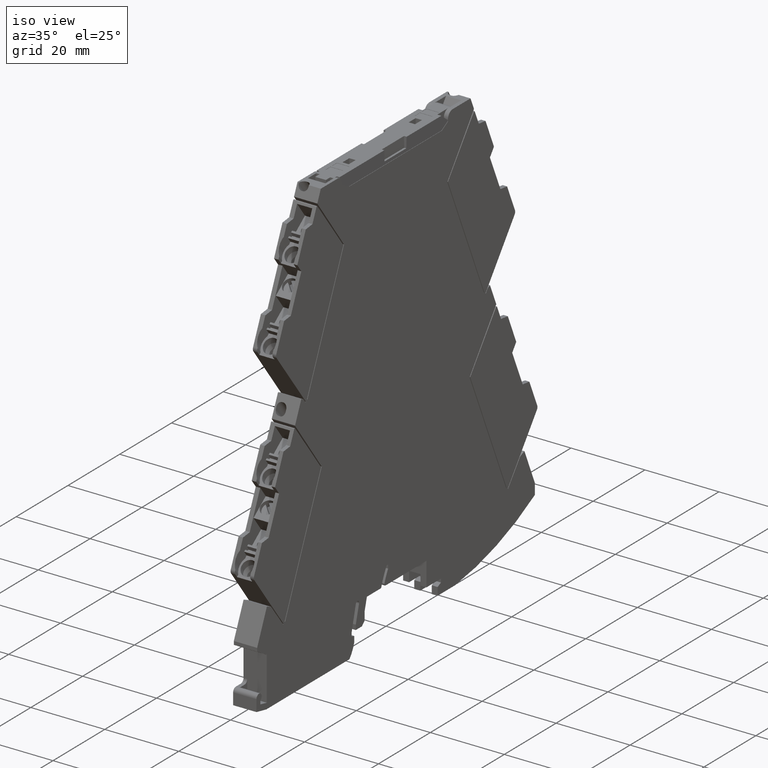
[diagram: clean part render]
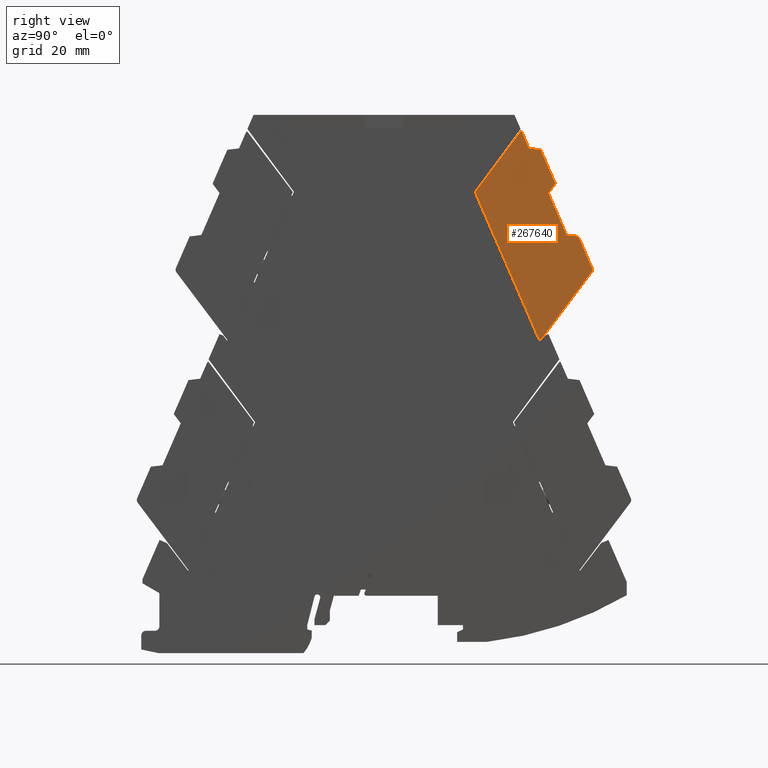
[diagram: tour spotlight — one face highlighted and labeled with its STEP entity id]
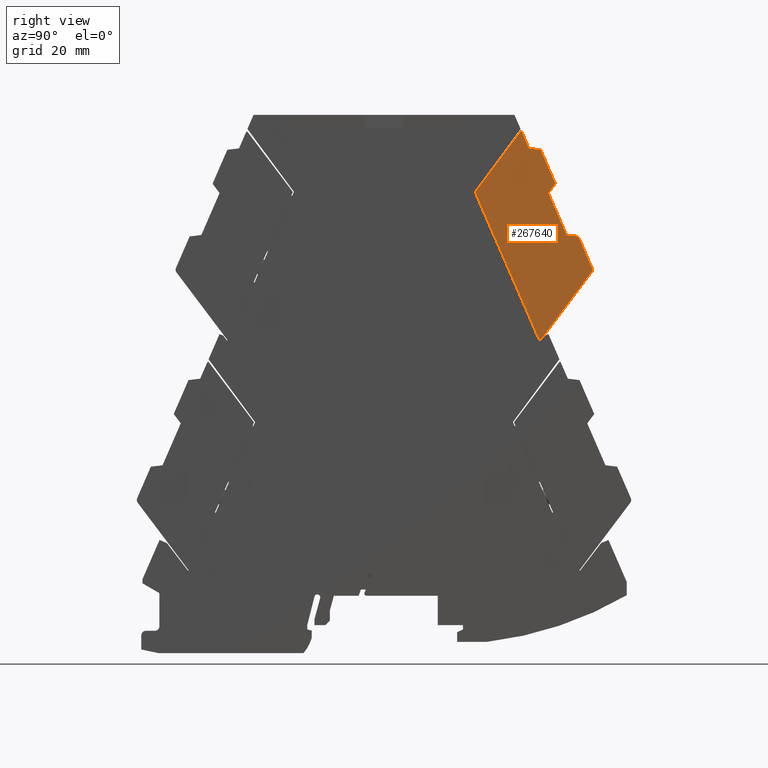
[diagram: tour spotlight — one face highlighted and labeled with its STEP entity id]
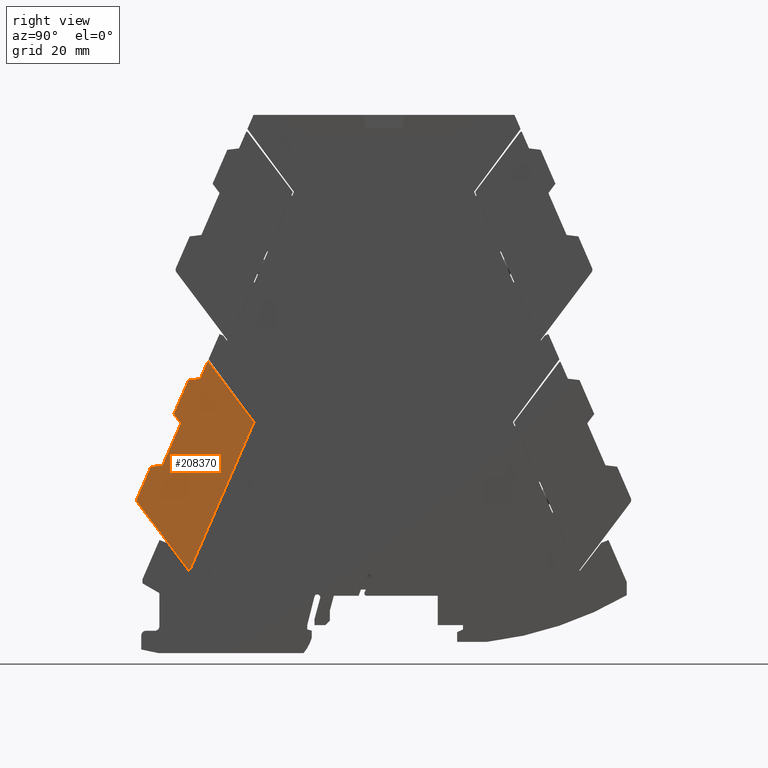
[diagram: tour spotlight — one face highlighted and labeled with its STEP entity id]
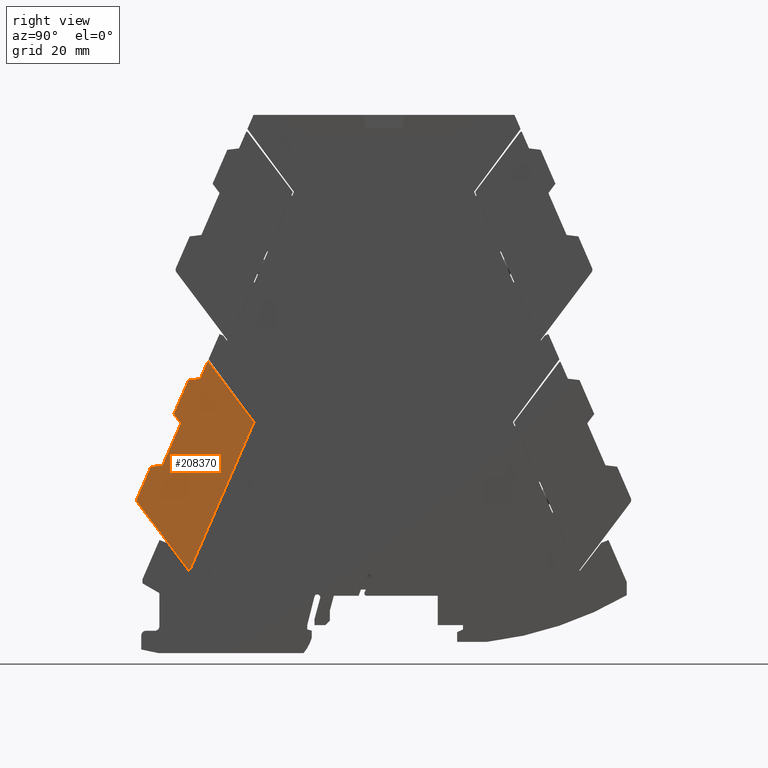
[diagram: tour spotlight — one face highlighted and labeled with its STEP entity id]
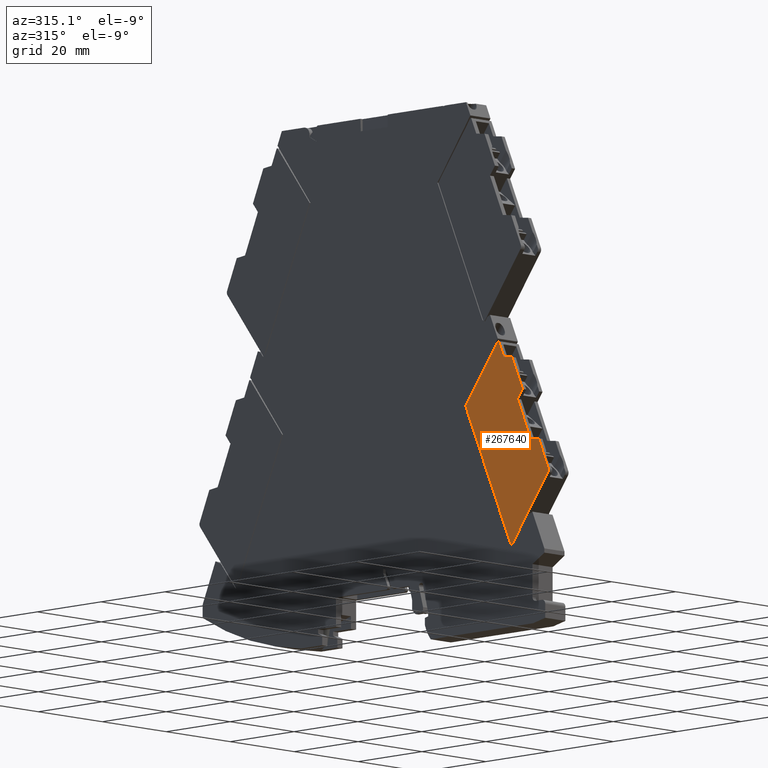
[diagram: tour spotlight — one face highlighted and labeled with its STEP entity id]
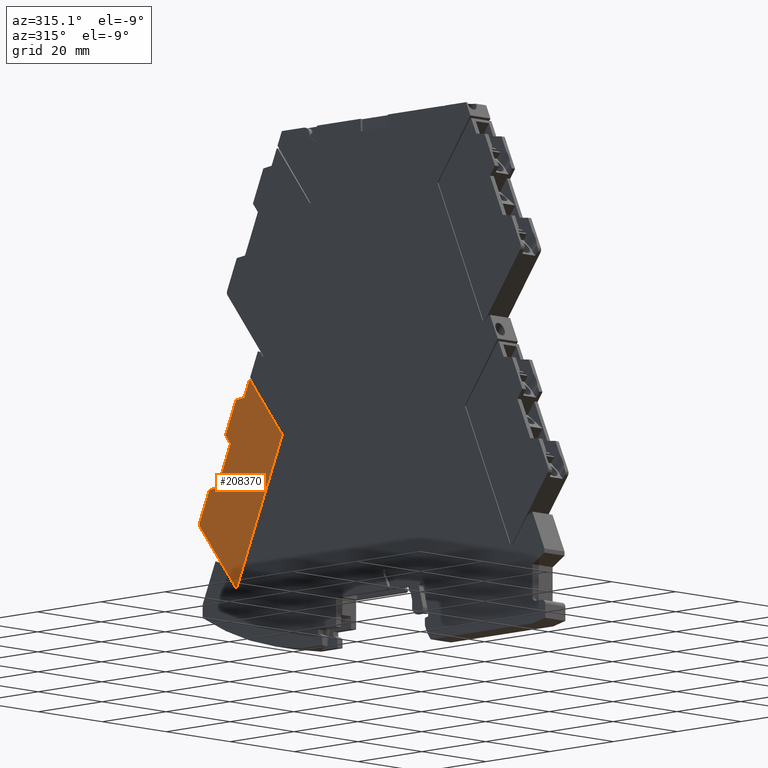
[diagram: tour spotlight — one face highlighted and labeled with its STEP entity id]
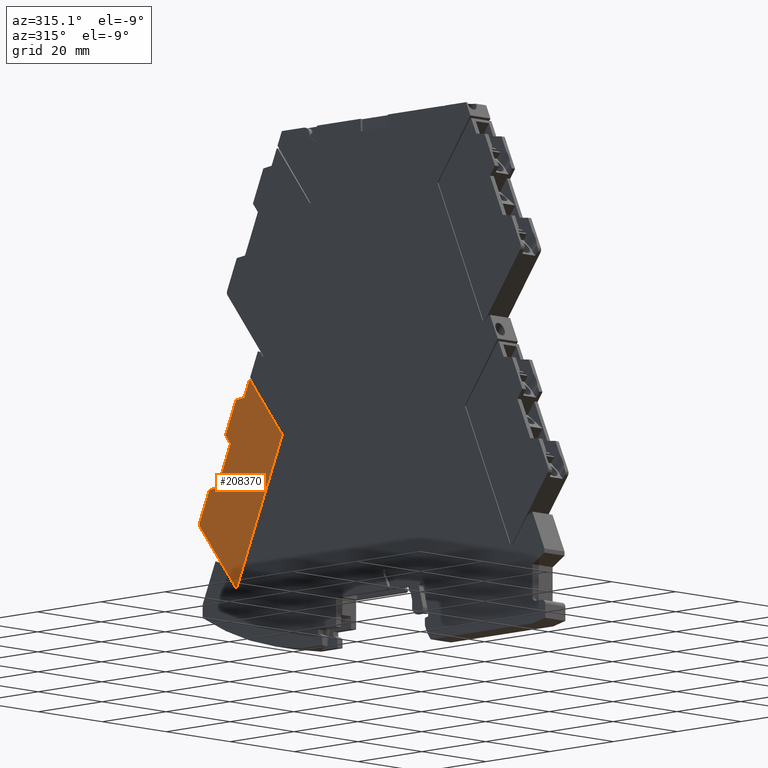
[diagram: tour spotlight — one face highlighted and labeled with its STEP entity id]
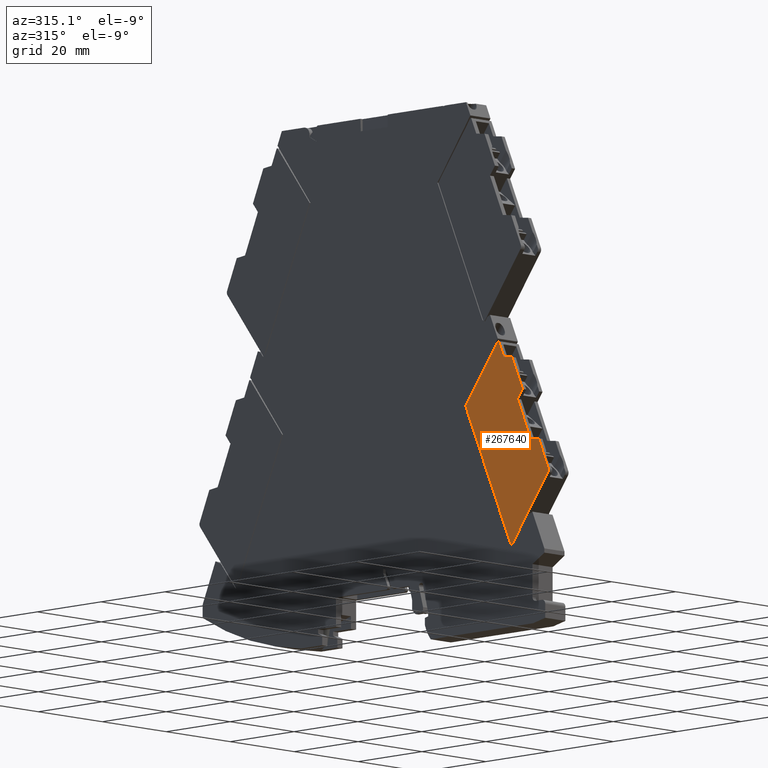
[diagram: tour spotlight — one face highlighted and labeled with its STEP entity id]
A machine part: a face-by-face anatomy tour. The part has 1234 B-rep faces; the first image is the clean iso view, then the 8 largest visible faces are spotlighted one at a time (largest first), each with its STEP entity span.

Face 1 — right view, entity #267640. In plain terms, the highlighted planar face has unit normal (1, -0, 0).
Definition (entity closure, byte-faithful):
#208470=CARTESIAN_POINT('',(-127.834970243558,23.5417332228139,
-9.55000000252271));
#208480=VERTEX_POINT('',#208470);
#208510=CARTESIAN_POINT('',(-2.8421709430404E-14,22.4261353561558,
-9.55000001550444));
#208520=DIRECTION('',(-0.999961923133656,0.00872652753623981,
1.01546791808627E-10));
#208530=VECTOR('',#208520,1.);
#208540=LINE('',#208510,#208530);
#208550=CARTESIAN_POINT('',(-144.491342192195,23.6870910457856,
-9.55000000083125));
#208560=VERTEX_POINT('',#208550);
#208570=EDGE_CURVE('',#208480,#208560,#208540,.T.);
#208800=CARTESIAN_POINT('',(-142.601348859071,-7.12310506249165,
-9.55000000094918));
#208810=VERTEX_POINT('',#208800);
#208970=CARTESIAN_POINT('',(-143.476039707181,-7.62296120132255,
-9.55000000085919));
#208980=VERTEX_POINT('',#208970);
#209010=CARTESIAN_POINT('',(-143.467313179645,-6.6229992781889,
-9.55000000086248));
#209020=DIRECTION('',(1.00774222510954E-10,1.12576479819879E-12,1.));
#209030=DIRECTION('',(0.999961923133654,-0.00872652753639959,
-1.00760561326841E-10));
#209040=AXIS2_PLACEMENT_3D('',#209010,#209020,#209030);
#209050=CIRCLE('',#209040,1.);
#209060=EDGE_CURVE('',#208980,#208810,#209050,.T.);
#209800=CARTESIAN_POINT('',(-162.213817258033,-7.45943924342349,
-9.54999999895636));
#209810=VERTEX_POINT('',#209800);
#209840=CARTESIAN_POINT('',(-2.8421709430404E-14,-8.87505648875294,
-9.55000001542928));
#209850=DIRECTION('',(0.999961923133656,-0.00872652753623987,
-1.01546791808627E-10));
#209860=VECTOR('',#209850,1.);
#209870=LINE('',#209840,#209860);
#209880=EDGE_CURVE('',#209810,#208980,#209870,.T.);
#210020=CARTESIAN_POINT('',(-127.66352268495,23.2417196813266,
-9.5500000025394));
#210030=VERTEX_POINT('',#210020);
#210060=CARTESIAN_POINT('',(-127.836715549065,23.3417408381872,
-9.55000000252205));
#210070=DIRECTION('',(-1.00774222510954E-10,-1.12576479819879E-12,-1.));
#210080=DIRECTION('',(0.999961923133654,-0.00872652753639959,
-1.00760561326841E-10));
#210090=AXIS2_PLACEMENT_3D('',#210060,#210070,#210080);
#210100=CIRCLE('',#210090,0.2);
#210110=EDGE_CURVE('',#208480,#210030,#210100,.T.);
#216180=CARTESIAN_POINT('',(-138.794183140722,-0.530760447698506,
-9.55000000135176));
#216190=VERTEX_POINT('',#216180);
#216220=CARTESIAN_POINT('',(-139.096507752099,-1.77635683940025E-15,
-9.55000000132233));
#216230=DIRECTION('',(-0.494944961437488,0.86892432647938,
4.81859274703567E-11));
#216240=VECTOR('',#216230,1.);
#216250=LINE('',#216220,#216240);
#216260=CARTESIAN_POINT('',(-140.084358501353,1.73426868406695,
-9.55000000122615));
#216270=VERTEX_POINT('',#216260);
#216280=EDGE_CURVE('',#216190,#216270,#216250,.T.);
#216450=CARTESIAN_POINT('',(-138.487662001609,-1.77635683940025E-15,
-9.55000000138417));
#216460=DIRECTION('',(-0.500105784302748,-0.865964320573852,
5.28759258600076E-11));
#216470=VECTOR('',#216460,1.);
#216480=LINE('',#216450,#216470);
#216490=CARTESIAN_POINT('',(-128.335752732167,17.5786633327923,
-9.55000000245753));
#216500=VERTEX_POINT('',#216490);
#216510=CARTESIAN_POINT('',(-132.434530595542,10.4813741210917,
-9.55000000202417));
#216520=VERTEX_POINT('',#216510);
#216530=EDGE_CURVE('',#216500,#216520,#216480,.T.);
#217030=CARTESIAN_POINT('',(-118.322831491231,-1.77635683940025E-15,
-9.55000000343234));
#217040=DIRECTION('',(-0.494944961437488,0.86892432647938,
4.81859274703567E-11));
#217050=VECTOR('',#217040,1.);
#217060=LINE('',#217030,#217050);
#217070=CARTESIAN_POINT('',(-129.625928092798,19.8436924645577,
-9.55000000233192));
#217080=VERTEX_POINT('',#217070);
#217090=EDGE_CURVE('',#216500,#217080,#217060,.T.);
#217330=CARTESIAN_POINT('',(-2.8421709430404E-14,9.32563653623511,
-9.55000001547298));
#217340=DIRECTION('',(0.999961923133656,-0.00872652753623987,
-1.01546791808627E-10));
#217350=VECTOR('',#217340,1.);
#217360=LINE('',#217330,#217350);
#217370=CARTESIAN_POINT('',(-135.019760828803,10.5039350629597,
-9.55000000176163));
#217380=VERTEX_POINT('',#217370);
#217390=EDGE_CURVE('',#217380,#216520,#217360,.T.);
#217900=CARTESIAN_POINT('',(-141.08592147552,-1.77635683940025E-15,
-9.55000000112026));
#217910=DIRECTION('',(-0.500105784302748,-0.865964320573852,
5.28759258600076E-11));
#217920=VECTOR('',#217910,1.);
#217930=LINE('',#217900,#217920);
#217940=EDGE_CURVE('',#217380,#216270,#217930,.T.);
#230310=CARTESIAN_POINT('',(-141.08592147552,-1.77635683940025E-15,
-9.55000000112026));
#230320=DIRECTION('',(-0.500105784302748,-0.865964320573852,
5.28759258600076E-11));
#230330=VECTOR('',#230320,1.);
#230340=LINE('',#230310,#230330);
#230350=EDGE_CURVE('',#210030,#217080,#230340,.T.);
#239780=CARTESIAN_POINT('',(-158.170948803993,-1.77635683940025E-15,
-9.54999999938491));
#239790=DIRECTION('',(0.500105784302748,0.865964320573852,
-5.28758981044319E-11));
#239800=VECTOR('',#239790,1.);
#239810=LINE('',#239780,#239800);
#239820=CARTESIAN_POINT('',(-162.209750519817,-6.99343677588575,
-9.54999999895789));
#239830=VERTEX_POINT('',#239820);
#239840=EDGE_CURVE('',#239830,#208560,#239810,.T.);
#254980=CARTESIAN_POINT('',(-162.148719777324,-1.77635683940025E-15,
-9.54999999898088));
#254990=DIRECTION('',(0.00872652754141354,0.999961923133611,
-3.28746491834453E-12));
#255000=VECTOR('',#254990,1.);
#255010=LINE('',#254980,#255000);
#255020=EDGE_CURVE('',#209810,#239830,#255010,.T.);
#267390=CARTESIAN_POINT('',(-146.763942497471,10.8898733385578,
-9.55000000056969));
#267400=DIRECTION('',(1.01571614201302E-10,2.40118788303072E-12,1.));
#267410=DIRECTION('',(-1.08412129273731E-9,1.,-2.40118777291478E-12));
#267420=AXIS2_PLACEMENT_3D('',#267390,#267400,#267410);
#267430=PLANE('',#267420);
#267440=ORIENTED_EDGE('',*,*,#210110,.F.);
#267450=ORIENTED_EDGE('',*,*,#230350,.F.);
#267460=ORIENTED_EDGE('',*,*,#217090,.T.);
#267470=ORIENTED_EDGE('',*,*,#216530,.F.);
#267480=ORIENTED_EDGE('',*,*,#217390,.T.);
#267490=ORIENTED_EDGE('',*,*,#217940,.F.);
#267500=ORIENTED_EDGE('',*,*,#216280,.T.);
#267510=CARTESIAN_POINT('',(-138.487662001609,-1.77635683940025E-15,
-9.55000000138417));
#267520=DIRECTION('',(-0.500105784302748,-0.865964320573852,
5.28759258600076E-11));
#267530=VECTOR('',#267520,1.);
#267540=LINE('',#267510,#267530);
#267550=EDGE_CURVE('',#216190,#208810,#267540,.T.);
#267560=ORIENTED_EDGE('',*,*,#267550,.F.);
#267570=ORIENTED_EDGE('',*,*,#209060,.T.);
#267580=ORIENTED_EDGE('',*,*,#209880,.T.);
#267590=ORIENTED_EDGE('',*,*,#255020,.F.);
#267600=ORIENTED_EDGE('',*,*,#239840,.F.);
#267610=ORIENTED_EDGE('',*,*,#208570,.T.);
#267620=EDGE_LOOP('',(#267610,#267600,#267590,#267580,#267570,#267560,
#267500,#267490,#267480,#267470,#267460,#267450,#267440));
#267630=FACE_OUTER_BOUND('',#267620,.T.);
#267640=ADVANCED_FACE('',(#267630),#267430,.T.);

Face 2 — right view, entity #267640. In plain terms, the highlighted planar face has unit normal (1, -0, 0).
Definition (entity closure, byte-faithful):
#208470=CARTESIAN_POINT('',(-127.834970243558,23.5417332228139,
-9.55000000252271));
#208480=VERTEX_POINT('',#208470);
#208510=CARTESIAN_POINT('',(-2.8421709430404E-14,22.4261353561558,
-9.55000001550444));
#208520=DIRECTION('',(-0.999961923133656,0.00872652753623981,
1.01546791808627E-10));
#208530=VECTOR('',#208520,1.);
#208540=LINE('',#208510,#208530);
#208550=CARTESIAN_POINT('',(-144.491342192195,23.6870910457856,
-9.55000000083125));
#208560=VERTEX_POINT('',#208550);
#208570=EDGE_CURVE('',#208480,#208560,#208540,.T.);
#208800=CARTESIAN_POINT('',(-142.601348859071,-7.12310506249165,
-9.55000000094918));
#208810=VERTEX_POINT('',#208800);
#208970=CARTESIAN_POINT('',(-143.476039707181,-7.62296120132255,
-9.55000000085919));
#208980=VERTEX_POINT('',#208970);
#209010=CARTESIAN_POINT('',(-143.467313179645,-6.6229992781889,
-9.55000000086248));
#209020=DIRECTION('',(1.00774222510954E-10,1.12576479819879E-12,1.));
#209030=DIRECTION('',(0.999961923133654,-0.00872652753639959,
-1.00760561326841E-10));
#209040=AXIS2_PLACEMENT_3D('',#209010,#209020,#209030);
#209050=CIRCLE('',#209040,1.);
#209060=EDGE_CURVE('',#208980,#208810,#209050,.T.);
#209800=CARTESIAN_POINT('',(-162.213817258033,-7.45943924342349,
-9.54999999895636));
#209810=VERTEX_POINT('',#209800);
#209840=CARTESIAN_POINT('',(-2.8421709430404E-14,-8.87505648875294,
-9.55000001542928));
#209850=DIRECTION('',(0.999961923133656,-0.00872652753623987,
-1.01546791808627E-10));
#209860=VECTOR('',#209850,1.);
#209870=LINE('',#209840,#209860);
#209880=EDGE_CURVE('',#209810,#208980,#209870,.T.);
#210020=CARTESIAN_POINT('',(-127.66352268495,23.2417196813266,
-9.5500000025394));
#210030=VERTEX_POINT('',#210020);
#210060=CARTESIAN_POINT('',(-127.836715549065,23.3417408381872,
-9.55000000252205));
#210070=DIRECTION('',(-1.00774222510954E-10,-1.12576479819879E-12,-1.));
#210080=DIRECTION('',(0.999961923133654,-0.00872652753639959,
-1.00760561326841E-10));
#210090=AXIS2_PLACEMENT_3D('',#210060,#210070,#210080);
#210100=CIRCLE('',#210090,0.2);
#210110=EDGE_CURVE('',#208480,#210030,#210100,.T.);
#216180=CARTESIAN_POINT('',(-138.794183140722,-0.530760447698506,
-9.55000000135176));
#216190=VERTEX_POINT('',#216180);
#216220=CARTESIAN_POINT('',(-139.096507752099,-1.77635683940025E-15,
-9.55000000132233));
#216230=DIRECTION('',(-0.494944961437488,0.86892432647938,
4.81859274703567E-11));
#216240=VECTOR('',#216230,1.);
#216250=LINE('',#216220,#216240);
#216260=CARTESIAN_POINT('',(-140.084358501353,1.73426868406695,
-9.55000000122615));
#216270=VERTEX_POINT('',#216260);
#216280=EDGE_CURVE('',#216190,#216270,#216250,.T.);
#216450=CARTESIAN_POINT('',(-138.487662001609,-1.77635683940025E-15,
-9.55000000138417));
#216460=DIRECTION('',(-0.500105784302748,-0.865964320573852,
5.28759258600076E-11));
#216470=VECTOR('',#216460,1.);
#216480=LINE('',#216450,#216470);
#216490=CARTESIAN_POINT('',(-128.335752732167,17.5786633327923,
-9.55000000245753));
#216500=VERTEX_POINT('',#216490);
#216510=CARTESIAN_POINT('',(-132.434530595542,10.4813741210917,
-9.55000000202417));
#216520=VERTEX_POINT('',#216510);
#216530=EDGE_CURVE('',#216500,#216520,#216480,.T.);
#217030=CARTESIAN_POINT('',(-118.322831491231,-1.77635683940025E-15,
-9.55000000343234));
#217040=DIRECTION('',(-0.494944961437488,0.86892432647938,
4.81859274703567E-11));
#217050=VECTOR('',#217040,1.);
#217060=LINE('',#217030,#217050);
#217070=CARTESIAN_POINT('',(-129.625928092798,19.8436924645577,
-9.55000000233192));
#217080=VERTEX_POINT('',#217070);
#217090=EDGE_CURVE('',#216500,#217080,#217060,.T.);
#217330=CARTESIAN_POINT('',(-2.8421709430404E-14,9.32563653623511,
-9.55000001547298));
#217340=DIRECTION('',(0.999961923133656,-0.00872652753623987,
-1.01546791808627E-10));
#217350=VECTOR('',#217340,1.);
#217360=LINE('',#217330,#217350);
#217370=CARTESIAN_POINT('',(-135.019760828803,10.5039350629597,
-9.55000000176163));
#217380=VERTEX_POINT('',#217370);
#217390=EDGE_CURVE('',#217380,#216520,#217360,.T.);
#217900=CARTESIAN_POINT('',(-141.08592147552,-1.77635683940025E-15,
-9.55000000112026));
#217910=DIRECTION('',(-0.500105784302748,-0.865964320573852,
5.28759258600076E-11));
#217920=VECTOR('',#217910,1.);
#217930=LINE('',#217900,#217920);
#217940=EDGE_CURVE('',#217380,#216270,#217930,.T.);
#230310=CARTESIAN_POINT('',(-141.08592147552,-1.77635683940025E-15,
-9.55000000112026));
#230320=DIRECTION('',(-0.500105784302748,-0.865964320573852,
5.28759258600076E-11));
#230330=VECTOR('',#230320,1.);
#230340=LINE('',#230310,#230330);
#230350=EDGE_CURVE('',#210030,#217080,#230340,.T.);
#239780=CARTESIAN_POINT('',(-158.170948803993,-1.77635683940025E-15,
-9.54999999938491));
#239790=DIRECTION('',(0.500105784302748,0.865964320573852,
-5.28758981044319E-11));
#239800=VECTOR('',#239790,1.);
#239810=LINE('',#239780,#239800);
#239820=CARTESIAN_POINT('',(-162.209750519817,-6.99343677588575,
-9.54999999895789));
#239830=VERTEX_POINT('',#239820);
#239840=EDGE_CURVE('',#239830,#208560,#239810,.T.);
#254980=CARTESIAN_POINT('',(-162.148719777324,-1.77635683940025E-15,
-9.54999999898088));
#254990=DIRECTION('',(0.00872652754141354,0.999961923133611,
-3.28746491834453E-12));
#255000=VECTOR('',#254990,1.);
#255010=LINE('',#254980,#255000);
#255020=EDGE_CURVE('',#209810,#239830,#255010,.T.);
#267390=CARTESIAN_POINT('',(-146.763942497471,10.8898733385578,
-9.55000000056969));
#267400=DIRECTION('',(1.01571614201302E-10,2.40118788303072E-12,1.));
#267410=DIRECTION('',(-1.08412129273731E-9,1.,-2.40118777291478E-12));
#267420=AXIS2_PLACEMENT_3D('',#267390,#267400,#267410);
#267430=PLANE('',#267420);
#267440=ORIENTED_EDGE('',*,*,#210110,.F.);
#267450=ORIENTED_EDGE('',*,*,#230350,.F.);
#267460=ORIENTED_EDGE('',*,*,#217090,.T.);
#267470=ORIENTED_EDGE('',*,*,#216530,.F.);
#267480=ORIENTED_EDGE('',*,*,#217390,.T.);
#267490=ORIENTED_EDGE('',*,*,#217940,.F.);
#267500=ORIENTED_EDGE('',*,*,#216280,.T.);
#267510=CARTESIAN_POINT('',(-138.487662001609,-1.77635683940025E-15,
-9.55000000138417));
#267520=DIRECTION('',(-0.500105784302748,-0.865964320573852,
5.28759258600076E-11));
#267530=VECTOR('',#267520,1.);
#267540=LINE('',#267510,#267530);
#267550=EDGE_CURVE('',#216190,#208810,#267540,.T.);
#267560=ORIENTED_EDGE('',*,*,#267550,.F.);
#267570=ORIENTED_EDGE('',*,*,#209060,.T.);
#267580=ORIENTED_EDGE('',*,*,#209880,.T.);
#267590=ORIENTED_EDGE('',*,*,#255020,.F.);
#267600=ORIENTED_EDGE('',*,*,#239840,.F.);
#267610=ORIENTED_EDGE('',*,*,#208570,.T.);
#267620=EDGE_LOOP('',(#267610,#267600,#267590,#267580,#267570,#267560,
#267500,#267490,#267480,#267470,#267460,#267450,#267440));
#267630=FACE_OUTER_BOUND('',#267620,.T.);
#267640=ADVANCED_FACE('',(#267630),#267430,.T.);

Face 3 — right view, entity #208370. In plain terms, the highlighted planar face has unit normal (1, -0, -0).
Definition (entity closure, byte-faithful):
#207240=CARTESIAN_POINT('',(-134.665499640029,36.0148734798086,
-15.8500000018065));
#207250=DIRECTION('',(-1.00774222510954E-10,-1.12576479819883E-12,-1.));
#207260=DIRECTION('',(-1.08363623629794E-9,1.,-1.12576468899623E-12));
#207270=AXIS2_PLACEMENT_3D('',#207240,#207250,#207260);
#207280=PLANE('',#207270);
#207290=CARTESIAN_POINT('',(-138.487662002977,-1.77635683940025E-15,
-15.8500000013808));
#207300=DIRECTION('',(0.500105784302748,0.865964320573852,
-5.13726838846651E-11));
#207310=VECTOR('',#207300,1.);
#207320=LINE('',#207290,#207310);
#207330=CARTESIAN_POINT('',(-142.601348859716,-7.12310506249325,
-15.8500000009582));
#207340=VERTEX_POINT('',#207330);
#207350=CARTESIAN_POINT('',(-138.794183141937,-0.530760447434463,
-15.8500000013493));
#207360=VERTEX_POINT('',#207350);
#207370=EDGE_CURVE('',#207340,#207360,#207320,.T.);
#207380=ORIENTED_EDGE('',*,*,#207370,.F.);
#207390=CARTESIAN_POINT('',(-139.096507753164,-1.77635683940025E-15,
-15.8500000013194));
#207400=DIRECTION('',(0.494944961437488,-0.86892432647938,
-4.88995233194345E-11));
#207410=VECTOR('',#207400,1.);
#207420=LINE('',#207390,#207410);
#207430=CARTESIAN_POINT('',(-140.084358502568,1.73426868433099,
-15.8500000012218));
#207440=VERTEX_POINT('',#207430);
#207450=EDGE_CURVE('',#207440,#207360,#207420,.T.);
#207460=ORIENTED_EDGE('',*,*,#207450,.T.);
#207470=CARTESIAN_POINT('',(-141.085921476888,-1.77635683940025E-15,
-15.8500000011189));
#207480=DIRECTION('',(0.500105784302748,0.865964320573852,
-5.13726838846651E-11));
#207490=VECTOR('',#207480,1.);
#207500=LINE('',#207470,#207490);
#207510=CARTESIAN_POINT('',(-135.019760830016,10.5039350632278,
-15.8500000017421));
#207520=VERTEX_POINT('',#207510);
#207530=EDGE_CURVE('',#207440,#207520,#207500,.T.);
#207540=ORIENTED_EDGE('',*,*,#207530,.F.);
#207550=CARTESIAN_POINT('',(-2.8421709430404E-14,9.32563653649262,
-15.8500000153473));
#207560=DIRECTION('',(-0.999961923133656,0.00872652753623987,
1.00760561352886E-10));
#207570=VECTOR('',#207560,1.);
#207580=LINE('',#207550,#207570);
#207590=CARTESIAN_POINT('',(-132.434530596755,10.4813741213597,
-15.8500000020026));
#207600=VERTEX_POINT('',#207590);
#207610=EDGE_CURVE('',#207600,#207520,#207580,.T.);
#207620=ORIENTED_EDGE('',*,*,#207610,.T.);
#207630=CARTESIAN_POINT('',(-138.487662002977,-1.77635683940025E-15,
-15.8500000013808));
#207640=DIRECTION('',(0.500105784302748,0.865964320573852,
-5.13726838846651E-11));
#207650=VECTOR('',#207640,1.);
#207660=LINE('',#207630,#207650);
#207670=CARTESIAN_POINT('',(-128.335752733384,17.5786633330537,
-15.8500000024236));
#207680=VERTEX_POINT('',#207670);
#207690=EDGE_CURVE('',#207600,#207680,#207660,.T.);
#207700=ORIENTED_EDGE('',*,*,#207690,.F.);
#207710=CARTESIAN_POINT('',(-118.322831492299,-1.77635683940025E-15,
-15.8500000034129));
#207720=DIRECTION('',(0.494944961437488,-0.86892432647938,
-4.88995233194345E-11));
#207730=VECTOR('',#207720,1.);
#207740=LINE('',#207710,#207730);
#207750=CARTESIAN_POINT('',(-129.625928094015,19.8436924648192,
-15.8500000022961));
#207760=VERTEX_POINT('',#207750);
#207770=EDGE_CURVE('',#207760,#207680,#207740,.T.);
#207780=ORIENTED_EDGE('',*,*,#207770,.T.);
#207790=CARTESIAN_POINT('',(-141.085921476888,-1.77635683940025E-15,
-15.8500000011189));
#207800=DIRECTION('',(0.500105784302748,0.865964320573852,
-5.13726838846651E-11));
#207810=VECTOR('',#207800,1.);
#207820=LINE('',#207790,#207810);
#207830=CARTESIAN_POINT('',(-127.663522685595,23.241719681325,
-15.8500000024977));
#207840=VERTEX_POINT('',#207830);
#207850=EDGE_CURVE('',#207760,#207840,#207820,.T.);
#207860=ORIENTED_EDGE('',*,*,#207850,.F.);
#207870=CARTESIAN_POINT('',(-127.8367155497,23.3417408381801,
-15.8500000024804));
#207880=DIRECTION('',(-1.00774222510954E-10,-1.12576479819879E-12,-1.));
#207890=DIRECTION('',(0.999961923133654,-0.00872652753639959,
-1.00760561326841E-10));
#207900=AXIS2_PLACEMENT_3D('',#207870,#207880,#207890);
#207910=CIRCLE('',#207900,0.2);
#207920=CARTESIAN_POINT('',(-127.834970244193,23.5417332228068,
-15.8500000024808));
#207930=VERTEX_POINT('',#207920);
#207940=EDGE_CURVE('',#207930,#207840,#207910,.T.);
#207950=ORIENTED_EDGE('',*,*,#207940,.T.);
#207960=CARTESIAN_POINT('',(-2.8421709430404E-14,22.4261353564056,
-15.850000015362));
#207970=DIRECTION('',(0.999961923133656,-0.00872652753623981,
-1.00760561352886E-10));
#207980=VECTOR('',#207970,1.);
#207990=LINE('',#207960,#207980);
#208000=CARTESIAN_POINT('',(-144.491342193412,23.687091046046,
-15.8500000008024));
#208010=VERTEX_POINT('',#208000);
#208020=EDGE_CURVE('',#208010,#207930,#207990,.T.);
#208030=ORIENTED_EDGE('',*,*,#208020,.T.);
#208040=CARTESIAN_POINT('',(-158.170948805361,-1.77635683940025E-15,
-15.8499999993972));
#208050=DIRECTION('',(-0.500105784302748,-0.865964320573852,
5.13726561290895E-11));
#208060=VECTOR('',#208050,1.);
#208070=LINE('',#208040,#208060);
#208080=CARTESIAN_POINT('',(-162.209750519972,-6.99343677378521,
-15.8499999989823));
#208090=VERTEX_POINT('',#208080);
#208100=EDGE_CURVE('',#208010,#208090,#208070,.T.);
#208110=ORIENTED_EDGE('',*,*,#208100,.F.);
#208120=CARTESIAN_POINT('',(-162.148719777497,-1.77635683940025E-15,
-15.8499999989964));
#208130=DIRECTION('',(-0.00872652754141354,-0.999961923133611,
2.0051304366886E-12));
#208140=VECTOR('',#208130,1.);
#208150=LINE('',#208120,#208140);
#208160=CARTESIAN_POINT('',(-162.213817258204,-7.45943924316449,
-15.8499999989814));
#208170=VERTEX_POINT('',#208160);
#208180=EDGE_CURVE('',#208090,#208170,#208150,.T.);
#208190=ORIENTED_EDGE('',*,*,#208180,.F.);
#208200=CARTESIAN_POINT('',(-2.8421709430404E-14,-8.87505648849543,
-15.8500000153268));
#208210=DIRECTION('',(-0.999961923133656,0.00872652753623987,
1.00760561352886E-10));
#208220=VECTOR('',#208210,1.);
#208230=LINE('',#208200,#208220);
#208240=CARTESIAN_POINT('',(-143.476039707816,-7.62296120132963,
-15.8500000008695));
#208250=VERTEX_POINT('',#208240);
#208260=EDGE_CURVE('',#208250,#208170,#208230,.T.);
#208270=ORIENTED_EDGE('',*,*,#208260,.T.);
#208280=CARTESIAN_POINT('',(-143.46731318028,-6.62299927819599,
-15.8500000008715));
#208290=DIRECTION('',(1.00774222510954E-10,1.12576479819879E-12,1.));
#208300=DIRECTION('',(0.999961923133654,-0.00872652753639959,
-1.00760561326841E-10));
#208310=AXIS2_PLACEMENT_3D('',#208280,#208290,#208300);
#208320=CIRCLE('',#208310,1.);
#208330=EDGE_CURVE('',#208250,#207340,#208320,.T.);
#208340=ORIENTED_EDGE('',*,*,#208330,.F.);
#208350=EDGE_LOOP('',(#208340,#208270,#208190,#208110,#208030,#207950,
#207860,#207780,#207700,#207620,#207540,#207460,#207380));
#208360=FACE_OUTER_BOUND('',#208350,.T.);
#208370=ADVANCED_FACE('',(#208360),#207280,.T.);

Face 4 — right view, entity #208370. In plain terms, the highlighted planar face has unit normal (1, -0, -0).
Definition (entity closure, byte-faithful):
#207240=CARTESIAN_POINT('',(-134.665499640029,36.0148734798086,
-15.8500000018065));
#207250=DIRECTION('',(-1.00774222510954E-10,-1.12576479819883E-12,-1.));
#207260=DIRECTION('',(-1.08363623629794E-9,1.,-1.12576468899623E-12));
#207270=AXIS2_PLACEMENT_3D('',#207240,#207250,#207260);
#207280=PLANE('',#207270);
#207290=CARTESIAN_POINT('',(-138.487662002977,-1.77635683940025E-15,
-15.8500000013808));
#207300=DIRECTION('',(0.500105784302748,0.865964320573852,
-5.13726838846651E-11));
#207310=VECTOR('',#207300,1.);
#207320=LINE('',#207290,#207310);
#207330=CARTESIAN_POINT('',(-142.601348859716,-7.12310506249325,
-15.8500000009582));
#207340=VERTEX_POINT('',#207330);
#207350=CARTESIAN_POINT('',(-138.794183141937,-0.530760447434463,
-15.8500000013493));
#207360=VERTEX_POINT('',#207350);
#207370=EDGE_CURVE('',#207340,#207360,#207320,.T.);
#207380=ORIENTED_EDGE('',*,*,#207370,.F.);
#207390=CARTESIAN_POINT('',(-139.096507753164,-1.77635683940025E-15,
-15.8500000013194));
#207400=DIRECTION('',(0.494944961437488,-0.86892432647938,
-4.88995233194345E-11));
#207410=VECTOR('',#207400,1.);
#207420=LINE('',#207390,#207410);
#207430=CARTESIAN_POINT('',(-140.084358502568,1.73426868433099,
-15.8500000012218));
#207440=VERTEX_POINT('',#207430);
#207450=EDGE_CURVE('',#207440,#207360,#207420,.T.);
#207460=ORIENTED_EDGE('',*,*,#207450,.T.);
#207470=CARTESIAN_POINT('',(-141.085921476888,-1.77635683940025E-15,
-15.8500000011189));
#207480=DIRECTION('',(0.500105784302748,0.865964320573852,
-5.13726838846651E-11));
#207490=VECTOR('',#207480,1.);
#207500=LINE('',#207470,#207490);
#207510=CARTESIAN_POINT('',(-135.019760830016,10.5039350632278,
-15.8500000017421));
#207520=VERTEX_POINT('',#207510);
#207530=EDGE_CURVE('',#207440,#207520,#207500,.T.);
#207540=ORIENTED_EDGE('',*,*,#207530,.F.);
#207550=CARTESIAN_POINT('',(-2.8421709430404E-14,9.32563653649262,
-15.8500000153473));
#207560=DIRECTION('',(-0.999961923133656,0.00872652753623987,
1.00760561352886E-10));
#207570=VECTOR('',#207560,1.);
#207580=LINE('',#207550,#207570);
#207590=CARTESIAN_POINT('',(-132.434530596755,10.4813741213597,
-15.8500000020026));
#207600=VERTEX_POINT('',#207590);
#207610=EDGE_CURVE('',#207600,#207520,#207580,.T.);
#207620=ORIENTED_EDGE('',*,*,#207610,.T.);
#207630=CARTESIAN_POINT('',(-138.487662002977,-1.77635683940025E-15,
-15.8500000013808));
#207640=DIRECTION('',(0.500105784302748,0.865964320573852,
-5.13726838846651E-11));
#207650=VECTOR('',#207640,1.);
#207660=LINE('',#207630,#207650);
#207670=CARTESIAN_POINT('',(-128.335752733384,17.5786633330537,
-15.8500000024236));
#207680=VERTEX_POINT('',#207670);
#207690=EDGE_CURVE('',#207600,#207680,#207660,.T.);
#207700=ORIENTED_EDGE('',*,*,#207690,.F.);
#207710=CARTESIAN_POINT('',(-118.322831492299,-1.77635683940025E-15,
-15.8500000034129));
#207720=DIRECTION('',(0.494944961437488,-0.86892432647938,
-4.88995233194345E-11));
#207730=VECTOR('',#207720,1.);
#207740=LINE('',#207710,#207730);
#207750=CARTESIAN_POINT('',(-129.625928094015,19.8436924648192,
-15.8500000022961));
#207760=VERTEX_POINT('',#207750);
#207770=EDGE_CURVE('',#207760,#207680,#207740,.T.);
#207780=ORIENTED_EDGE('',*,*,#207770,.T.);
#207790=CARTESIAN_POINT('',(-141.085921476888,-1.77635683940025E-15,
-15.8500000011189));
#207800=DIRECTION('',(0.500105784302748,0.865964320573852,
-5.13726838846651E-11));
#207810=VECTOR('',#207800,1.);
#207820=LINE('',#207790,#207810);
#207830=CARTESIAN_POINT('',(-127.663522685595,23.241719681325,
-15.8500000024977));
#207840=VERTEX_POINT('',#207830);
#207850=EDGE_CURVE('',#207760,#207840,#207820,.T.);
#207860=ORIENTED_EDGE('',*,*,#207850,.F.);
#207870=CARTESIAN_POINT('',(-127.8367155497,23.3417408381801,
-15.8500000024804));
#207880=DIRECTION('',(-1.00774222510954E-10,-1.12576479819879E-12,-1.));
#207890=DIRECTION('',(0.999961923133654,-0.00872652753639959,
-1.00760561326841E-10));
#207900=AXIS2_PLACEMENT_3D('',#207870,#207880,#207890);
#207910=CIRCLE('',#207900,0.2);
#207920=CARTESIAN_POINT('',(-127.834970244193,23.5417332228068,
-15.8500000024808));
#207930=VERTEX_POINT('',#207920);
#207940=EDGE_CURVE('',#207930,#207840,#207910,.T.);
#207950=ORIENTED_EDGE('',*,*,#207940,.T.);
#207960=CARTESIAN_POINT('',(-2.8421709430404E-14,22.4261353564056,
-15.850000015362));
#207970=DIRECTION('',(0.999961923133656,-0.00872652753623981,
-1.00760561352886E-10));
#207980=VECTOR('',#207970,1.);
#207990=LINE('',#207960,#207980);
#208000=CARTESIAN_POINT('',(-144.491342193412,23.687091046046,
-15.8500000008024));
#208010=VERTEX_POINT('',#208000);
#208020=EDGE_CURVE('',#208010,#207930,#207990,.T.);
#208030=ORIENTED_EDGE('',*,*,#208020,.T.);
#208040=CARTESIAN_POINT('',(-158.170948805361,-1.77635683940025E-15,
-15.8499999993972));
#208050=DIRECTION('',(-0.500105784302748,-0.865964320573852,
5.13726561290895E-11));
#208060=VECTOR('',#208050,1.);
#208070=LINE('',#208040,#208060);
#208080=CARTESIAN_POINT('',(-162.209750519972,-6.99343677378521,
-15.8499999989823));
#208090=VERTEX_POINT('',#208080);
#208100=EDGE_CURVE('',#208010,#208090,#208070,.T.);
#208110=ORIENTED_EDGE('',*,*,#208100,.F.);
#208120=CARTESIAN_POINT('',(-162.148719777497,-1.77635683940025E-15,
-15.8499999989964));
#208130=DIRECTION('',(-0.00872652754141354,-0.999961923133611,
2.0051304366886E-12));
#208140=VECTOR('',#208130,1.);
#208150=LINE('',#208120,#208140);
#208160=CARTESIAN_POINT('',(-162.213817258204,-7.45943924316449,
-15.8499999989814));
#208170=VERTEX_POINT('',#208160);
#208180=EDGE_CURVE('',#208090,#208170,#208150,.T.);
#208190=ORIENTED_EDGE('',*,*,#208180,.F.);
#208200=CARTESIAN_POINT('',(-2.8421709430404E-14,-8.87505648849543,
-15.8500000153268));
#208210=DIRECTION('',(-0.999961923133656,0.00872652753623987,
1.00760561352886E-10));
#208220=VECTOR('',#208210,1.);
#208230=LINE('',#208200,#208220);
#208240=CARTESIAN_POINT('',(-143.476039707816,-7.62296120132963,
-15.8500000008695));
#208250=VERTEX_POINT('',#208240);
#208260=EDGE_CURVE('',#208250,#208170,#208230,.T.);
#208270=ORIENTED_EDGE('',*,*,#208260,.T.);
#208280=CARTESIAN_POINT('',(-143.46731318028,-6.62299927819599,
-15.8500000008715));
#208290=DIRECTION('',(1.00774222510954E-10,1.12576479819879E-12,1.));
#208300=DIRECTION('',(0.999961923133654,-0.00872652753639959,
-1.00760561326841E-10));
#208310=AXIS2_PLACEMENT_3D('',#208280,#208290,#208300);
#208320=CIRCLE('',#208310,1.);
#208330=EDGE_CURVE('',#208250,#207340,#208320,.T.);
#208340=ORIENTED_EDGE('',*,*,#208330,.F.);
#208350=EDGE_LOOP('',(#208340,#208270,#208190,#208110,#208030,#207950,
#207860,#207780,#207700,#207620,#207540,#207460,#207380));
#208360=FACE_OUTER_BOUND('',#208350,.T.);
#208370=ADVANCED_FACE('',(#208360),#207280,.T.);

Face 5 — auxiliary view, entity #267640. In plain terms, the highlighted planar face has unit normal (-1, 0, 0).
Definition (entity closure, byte-faithful):
#208470=CARTESIAN_POINT('',(-127.834970243558,23.5417332228139,
-9.55000000252271));
#208480=VERTEX_POINT('',#208470);
#208510=CARTESIAN_POINT('',(-2.8421709430404E-14,22.4261353561558,
-9.55000001550444));
#208520=DIRECTION('',(-0.999961923133656,0.00872652753623981,
1.01546791808627E-10));
#208530=VECTOR('',#208520,1.);
#208540=LINE('',#208510,#208530);
#208550=CARTESIAN_POINT('',(-144.491342192195,23.6870910457856,
-9.55000000083125));
#208560=VERTEX_POINT('',#208550);
#208570=EDGE_CURVE('',#208480,#208560,#208540,.T.);
#208800=CARTESIAN_POINT('',(-142.601348859071,-7.12310506249165,
-9.55000000094918));
#208810=VERTEX_POINT('',#208800);
#208970=CARTESIAN_POINT('',(-143.476039707181,-7.62296120132255,
-9.55000000085919));
#208980=VERTEX_POINT('',#208970);
#209010=CARTESIAN_POINT('',(-143.467313179645,-6.6229992781889,
-9.55000000086248));
#209020=DIRECTION('',(1.00774222510954E-10,1.12576479819879E-12,1.));
#209030=DIRECTION('',(0.999961923133654,-0.00872652753639959,
-1.00760561326841E-10));
#209040=AXIS2_PLACEMENT_3D('',#209010,#209020,#209030);
#209050=CIRCLE('',#209040,1.);
#209060=EDGE_CURVE('',#208980,#208810,#209050,.T.);
#209800=CARTESIAN_POINT('',(-162.213817258033,-7.45943924342349,
-9.54999999895636));
#209810=VERTEX_POINT('',#209800);
#209840=CARTESIAN_POINT('',(-2.8421709430404E-14,-8.87505648875294,
-9.55000001542928));
#209850=DIRECTION('',(0.999961923133656,-0.00872652753623987,
-1.01546791808627E-10));
#209860=VECTOR('',#209850,1.);
#209870=LINE('',#209840,#209860);
#209880=EDGE_CURVE('',#209810,#208980,#209870,.T.);
#210020=CARTESIAN_POINT('',(-127.66352268495,23.2417196813266,
-9.5500000025394));
#210030=VERTEX_POINT('',#210020);
#210060=CARTESIAN_POINT('',(-127.836715549065,23.3417408381872,
-9.55000000252205));
#210070=DIRECTION('',(-1.00774222510954E-10,-1.12576479819879E-12,-1.));
#210080=DIRECTION('',(0.999961923133654,-0.00872652753639959,
-1.00760561326841E-10));
#210090=AXIS2_PLACEMENT_3D('',#210060,#210070,#210080);
#210100=CIRCLE('',#210090,0.2);
#210110=EDGE_CURVE('',#208480,#210030,#210100,.T.);
#216180=CARTESIAN_POINT('',(-138.794183140722,-0.530760447698506,
-9.55000000135176));
#216190=VERTEX_POINT('',#216180);
#216220=CARTESIAN_POINT('',(-139.096507752099,-1.77635683940025E-15,
-9.55000000132233));
#216230=DIRECTION('',(-0.494944961437488,0.86892432647938,
4.81859274703567E-11));
#216240=VECTOR('',#216230,1.);
#216250=LINE('',#216220,#216240);
#216260=CARTESIAN_POINT('',(-140.084358501353,1.73426868406695,
-9.55000000122615));
#216270=VERTEX_POINT('',#216260);
#216280=EDGE_CURVE('',#216190,#216270,#216250,.T.);
#216450=CARTESIAN_POINT('',(-138.487662001609,-1.77635683940025E-15,
-9.55000000138417));
#216460=DIRECTION('',(-0.500105784302748,-0.865964320573852,
5.28759258600076E-11));
#216470=VECTOR('',#216460,1.);
#216480=LINE('',#216450,#216470);
#216490=CARTESIAN_POINT('',(-128.335752732167,17.5786633327923,
-9.55000000245753));
#216500=VERTEX_POINT('',#216490);
#216510=CARTESIAN_POINT('',(-132.434530595542,10.4813741210917,
-9.55000000202417));
#216520=VERTEX_POINT('',#216510);
#216530=EDGE_CURVE('',#216500,#216520,#216480,.T.);
#217030=CARTESIAN_POINT('',(-118.322831491231,-1.77635683940025E-15,
-9.55000000343234));
#217040=DIRECTION('',(-0.494944961437488,0.86892432647938,
4.81859274703567E-11));
#217050=VECTOR('',#217040,1.);
#217060=LINE('',#217030,#217050);
#217070=CARTESIAN_POINT('',(-129.625928092798,19.8436924645577,
-9.55000000233192));
#217080=VERTEX_POINT('',#217070);
#217090=EDGE_CURVE('',#216500,#217080,#217060,.T.);
#217330=CARTESIAN_POINT('',(-2.8421709430404E-14,9.32563653623511,
-9.55000001547298));
#217340=DIRECTION('',(0.999961923133656,-0.00872652753623987,
-1.01546791808627E-10));
#217350=VECTOR('',#217340,1.);
#217360=LINE('',#217330,#217350);
#217370=CARTESIAN_POINT('',(-135.019760828803,10.5039350629597,
-9.55000000176163));
#217380=VERTEX_POINT('',#217370);
#217390=EDGE_CURVE('',#217380,#216520,#217360,.T.);
#217900=CARTESIAN_POINT('',(-141.08592147552,-1.77635683940025E-15,
-9.55000000112026));
#217910=DIRECTION('',(-0.500105784302748,-0.865964320573852,
5.28759258600076E-11));
#217920=VECTOR('',#217910,1.);
#217930=LINE('',#217900,#217920);
#217940=EDGE_CURVE('',#217380,#216270,#217930,.T.);
#230310=CARTESIAN_POINT('',(-141.08592147552,-1.77635683940025E-15,
-9.55000000112026));
#230320=DIRECTION('',(-0.500105784302748,-0.865964320573852,
5.28759258600076E-11));
#230330=VECTOR('',#230320,1.);
#230340=LINE('',#230310,#230330);
#230350=EDGE_CURVE('',#210030,#217080,#230340,.T.);
#239780=CARTESIAN_POINT('',(-158.170948803993,-1.77635683940025E-15,
-9.54999999938491));
#239790=DIRECTION('',(0.500105784302748,0.865964320573852,
-5.28758981044319E-11));
#239800=VECTOR('',#239790,1.);
#239810=LINE('',#239780,#239800);
#239820=CARTESIAN_POINT('',(-162.209750519817,-6.99343677588575,
-9.54999999895789));
#239830=VERTEX_POINT('',#239820);
#239840=EDGE_CURVE('',#239830,#208560,#239810,.T.);
#254980=CARTESIAN_POINT('',(-162.148719777324,-1.77635683940025E-15,
-9.54999999898088));
#254990=DIRECTION('',(0.00872652754141354,0.999961923133611,
-3.28746491834453E-12));
#255000=VECTOR('',#254990,1.);
#255010=LINE('',#254980,#255000);
#255020=EDGE_CURVE('',#209810,#239830,#255010,.T.);
#267390=CARTESIAN_POINT('',(-146.763942497471,10.8898733385578,
-9.55000000056969));
#267400=DIRECTION('',(1.01571614201302E-10,2.40118788303072E-12,1.));
#267410=DIRECTION('',(-1.08412129273731E-9,1.,-2.40118777291478E-12));
#267420=AXIS2_PLACEMENT_3D('',#267390,#267400,#267410);
#267430=PLANE('',#267420);
#267440=ORIENTED_EDGE('',*,*,#210110,.F.);
#267450=ORIENTED_EDGE('',*,*,#230350,.F.);
#267460=ORIENTED_EDGE('',*,*,#217090,.T.);
#267470=ORIENTED_EDGE('',*,*,#216530,.F.);
#267480=ORIENTED_EDGE('',*,*,#217390,.T.);
#267490=ORIENTED_EDGE('',*,*,#217940,.F.);
#267500=ORIENTED_EDGE('',*,*,#216280,.T.);
#267510=CARTESIAN_POINT('',(-138.487662001609,-1.77635683940025E-15,
-9.55000000138417));
#267520=DIRECTION('',(-0.500105784302748,-0.865964320573852,
5.28759258600076E-11));
#267530=VECTOR('',#267520,1.);
#267540=LINE('',#267510,#267530);
#267550=EDGE_CURVE('',#216190,#208810,#267540,.T.);
#267560=ORIENTED_EDGE('',*,*,#267550,.F.);
#267570=ORIENTED_EDGE('',*,*,#209060,.T.);
#267580=ORIENTED_EDGE('',*,*,#209880,.T.);
#267590=ORIENTED_EDGE('',*,*,#255020,.F.);
#267600=ORIENTED_EDGE('',*,*,#239840,.F.);
#267610=ORIENTED_EDGE('',*,*,#208570,.T.);
#267620=EDGE_LOOP('',(#267610,#267600,#267590,#267580,#267570,#267560,
#267500,#267490,#267480,#267470,#267460,#267450,#267440));
#267630=FACE_OUTER_BOUND('',#267620,.T.);
#267640=ADVANCED_FACE('',(#267630),#267430,.T.);

Face 6 — auxiliary view, entity #208370. In plain terms, the highlighted planar face has unit normal (-1, 0, -0).
Definition (entity closure, byte-faithful):
#207240=CARTESIAN_POINT('',(-134.665499640029,36.0148734798086,
-15.8500000018065));
#207250=DIRECTION('',(-1.00774222510954E-10,-1.12576479819883E-12,-1.));
#207260=DIRECTION('',(-1.08363623629794E-9,1.,-1.12576468899623E-12));
#207270=AXIS2_PLACEMENT_3D('',#207240,#207250,#207260);
#207280=PLANE('',#207270);
#207290=CARTESIAN_POINT('',(-138.487662002977,-1.77635683940025E-15,
-15.8500000013808));
#207300=DIRECTION('',(0.500105784302748,0.865964320573852,
-5.13726838846651E-11));
#207310=VECTOR('',#207300,1.);
#207320=LINE('',#207290,#207310);
#207330=CARTESIAN_POINT('',(-142.601348859716,-7.12310506249325,
-15.8500000009582));
#207340=VERTEX_POINT('',#207330);
#207350=CARTESIAN_POINT('',(-138.794183141937,-0.530760447434463,
-15.8500000013493));
#207360=VERTEX_POINT('',#207350);
#207370=EDGE_CURVE('',#207340,#207360,#207320,.T.);
#207380=ORIENTED_EDGE('',*,*,#207370,.F.);
#207390=CARTESIAN_POINT('',(-139.096507753164,-1.77635683940025E-15,
-15.8500000013194));
#207400=DIRECTION('',(0.494944961437488,-0.86892432647938,
-4.88995233194345E-11));
#207410=VECTOR('',#207400,1.);
#207420=LINE('',#207390,#207410);
#207430=CARTESIAN_POINT('',(-140.084358502568,1.73426868433099,
-15.8500000012218));
#207440=VERTEX_POINT('',#207430);
#207450=EDGE_CURVE('',#207440,#207360,#207420,.T.);
#207460=ORIENTED_EDGE('',*,*,#207450,.T.);
#207470=CARTESIAN_POINT('',(-141.085921476888,-1.77635683940025E-15,
-15.8500000011189));
#207480=DIRECTION('',(0.500105784302748,0.865964320573852,
-5.13726838846651E-11));
#207490=VECTOR('',#207480,1.);
#207500=LINE('',#207470,#207490);
#207510=CARTESIAN_POINT('',(-135.019760830016,10.5039350632278,
-15.8500000017421));
#207520=VERTEX_POINT('',#207510);
#207530=EDGE_CURVE('',#207440,#207520,#207500,.T.);
#207540=ORIENTED_EDGE('',*,*,#207530,.F.);
#207550=CARTESIAN_POINT('',(-2.8421709430404E-14,9.32563653649262,
-15.8500000153473));
#207560=DIRECTION('',(-0.999961923133656,0.00872652753623987,
1.00760561352886E-10));
#207570=VECTOR('',#207560,1.);
#207580=LINE('',#207550,#207570);
#207590=CARTESIAN_POINT('',(-132.434530596755,10.4813741213597,
-15.8500000020026));
#207600=VERTEX_POINT('',#207590);
#207610=EDGE_CURVE('',#207600,#207520,#207580,.T.);
#207620=ORIENTED_EDGE('',*,*,#207610,.T.);
#207630=CARTESIAN_POINT('',(-138.487662002977,-1.77635683940025E-15,
-15.8500000013808));
#207640=DIRECTION('',(0.500105784302748,0.865964320573852,
-5.13726838846651E-11));
#207650=VECTOR('',#207640,1.);
#207660=LINE('',#207630,#207650);
#207670=CARTESIAN_POINT('',(-128.335752733384,17.5786633330537,
-15.8500000024236));
#207680=VERTEX_POINT('',#207670);
#207690=EDGE_CURVE('',#207600,#207680,#207660,.T.);
#207700=ORIENTED_EDGE('',*,*,#207690,.F.);
#207710=CARTESIAN_POINT('',(-118.322831492299,-1.77635683940025E-15,
-15.8500000034129));
#207720=DIRECTION('',(0.494944961437488,-0.86892432647938,
-4.88995233194345E-11));
#207730=VECTOR('',#207720,1.);
#207740=LINE('',#207710,#207730);
#207750=CARTESIAN_POINT('',(-129.625928094015,19.8436924648192,
-15.8500000022961));
#207760=VERTEX_POINT('',#207750);
#207770=EDGE_CURVE('',#207760,#207680,#207740,.T.);
#207780=ORIENTED_EDGE('',*,*,#207770,.T.);
#207790=CARTESIAN_POINT('',(-141.085921476888,-1.77635683940025E-15,
-15.8500000011189));
#207800=DIRECTION('',(0.500105784302748,0.865964320573852,
-5.13726838846651E-11));
#207810=VECTOR('',#207800,1.);
#207820=LINE('',#207790,#207810);
#207830=CARTESIAN_POINT('',(-127.663522685595,23.241719681325,
-15.8500000024977));
#207840=VERTEX_POINT('',#207830);
#207850=EDGE_CURVE('',#207760,#207840,#207820,.T.);
#207860=ORIENTED_EDGE('',*,*,#207850,.F.);
#207870=CARTESIAN_POINT('',(-127.8367155497,23.3417408381801,
-15.8500000024804));
#207880=DIRECTION('',(-1.00774222510954E-10,-1.12576479819879E-12,-1.));
#207890=DIRECTION('',(0.999961923133654,-0.00872652753639959,
-1.00760561326841E-10));
#207900=AXIS2_PLACEMENT_3D('',#207870,#207880,#207890);
#207910=CIRCLE('',#207900,0.2);
#207920=CARTESIAN_POINT('',(-127.834970244193,23.5417332228068,
-15.8500000024808));
#207930=VERTEX_POINT('',#207920);
#207940=EDGE_CURVE('',#207930,#207840,#207910,.T.);
#207950=ORIENTED_EDGE('',*,*,#207940,.T.);
#207960=CARTESIAN_POINT('',(-2.8421709430404E-14,22.4261353564056,
-15.850000015362));
#207970=DIRECTION('',(0.999961923133656,-0.00872652753623981,
-1.00760561352886E-10));
#207980=VECTOR('',#207970,1.);
#207990=LINE('',#207960,#207980);
#208000=CARTESIAN_POINT('',(-144.491342193412,23.687091046046,
-15.8500000008024));
#208010=VERTEX_POINT('',#208000);
#208020=EDGE_CURVE('',#208010,#207930,#207990,.T.);
#208030=ORIENTED_EDGE('',*,*,#208020,.T.);
#208040=CARTESIAN_POINT('',(-158.170948805361,-1.77635683940025E-15,
-15.8499999993972));
#208050=DIRECTION('',(-0.500105784302748,-0.865964320573852,
5.13726561290895E-11));
#208060=VECTOR('',#208050,1.);
#208070=LINE('',#208040,#208060);
#208080=CARTESIAN_POINT('',(-162.209750519972,-6.99343677378521,
-15.8499999989823));
#208090=VERTEX_POINT('',#208080);
#208100=EDGE_CURVE('',#208010,#208090,#208070,.T.);
#208110=ORIENTED_EDGE('',*,*,#208100,.F.);
#208120=CARTESIAN_POINT('',(-162.148719777497,-1.77635683940025E-15,
-15.8499999989964));
#208130=DIRECTION('',(-0.00872652754141354,-0.999961923133611,
2.0051304366886E-12));
#208140=VECTOR('',#208130,1.);
#208150=LINE('',#208120,#208140);
#208160=CARTESIAN_POINT('',(-162.213817258204,-7.45943924316449,
-15.8499999989814));
#208170=VERTEX_POINT('',#208160);
#208180=EDGE_CURVE('',#208090,#208170,#208150,.T.);
#208190=ORIENTED_EDGE('',*,*,#208180,.F.);
#208200=CARTESIAN_POINT('',(-2.8421709430404E-14,-8.87505648849543,
-15.8500000153268));
#208210=DIRECTION('',(-0.999961923133656,0.00872652753623987,
1.00760561352886E-10));
#208220=VECTOR('',#208210,1.);
#208230=LINE('',#208200,#208220);
#208240=CARTESIAN_POINT('',(-143.476039707816,-7.62296120132963,
-15.8500000008695));
#208250=VERTEX_POINT('',#208240);
#208260=EDGE_CURVE('',#208250,#208170,#208230,.T.);
#208270=ORIENTED_EDGE('',*,*,#208260,.T.);
#208280=CARTESIAN_POINT('',(-143.46731318028,-6.62299927819599,
-15.8500000008715));
#208290=DIRECTION('',(1.00774222510954E-10,1.12576479819879E-12,1.));
#208300=DIRECTION('',(0.999961923133654,-0.00872652753639959,
-1.00760561326841E-10));
#208310=AXIS2_PLACEMENT_3D('',#208280,#208290,#208300);
#208320=CIRCLE('',#208310,1.);
#208330=EDGE_CURVE('',#208250,#207340,#208320,.T.);
#208340=ORIENTED_EDGE('',*,*,#208330,.F.);
#208350=EDGE_LOOP('',(#208340,#208270,#208190,#208110,#208030,#207950,
#207860,#207780,#207700,#207620,#207540,#207460,#207380));
#208360=FACE_OUTER_BOUND('',#208350,.T.);
#208370=ADVANCED_FACE('',(#208360),#207280,.T.);

Face 7 — auxiliary view, entity #208370. In plain terms, the highlighted planar face has unit normal (-1, 0, -0).
Definition (entity closure, byte-faithful):
#207240=CARTESIAN_POINT('',(-134.665499640029,36.0148734798086,
-15.8500000018065));
#207250=DIRECTION('',(-1.00774222510954E-10,-1.12576479819883E-12,-1.));
#207260=DIRECTION('',(-1.08363623629794E-9,1.,-1.12576468899623E-12));
#207270=AXIS2_PLACEMENT_3D('',#207240,#207250,#207260);
#207280=PLANE('',#207270);
#207290=CARTESIAN_POINT('',(-138.487662002977,-1.77635683940025E-15,
-15.8500000013808));
#207300=DIRECTION('',(0.500105784302748,0.865964320573852,
-5.13726838846651E-11));
#207310=VECTOR('',#207300,1.);
#207320=LINE('',#207290,#207310);
#207330=CARTESIAN_POINT('',(-142.601348859716,-7.12310506249325,
-15.8500000009582));
#207340=VERTEX_POINT('',#207330);
#207350=CARTESIAN_POINT('',(-138.794183141937,-0.530760447434463,
-15.8500000013493));
#207360=VERTEX_POINT('',#207350);
#207370=EDGE_CURVE('',#207340,#207360,#207320,.T.);
#207380=ORIENTED_EDGE('',*,*,#207370,.F.);
#207390=CARTESIAN_POINT('',(-139.096507753164,-1.77635683940025E-15,
-15.8500000013194));
#207400=DIRECTION('',(0.494944961437488,-0.86892432647938,
-4.88995233194345E-11));
#207410=VECTOR('',#207400,1.);
#207420=LINE('',#207390,#207410);
#207430=CARTESIAN_POINT('',(-140.084358502568,1.73426868433099,
-15.8500000012218));
#207440=VERTEX_POINT('',#207430);
#207450=EDGE_CURVE('',#207440,#207360,#207420,.T.);
#207460=ORIENTED_EDGE('',*,*,#207450,.T.);
#207470=CARTESIAN_POINT('',(-141.085921476888,-1.77635683940025E-15,
-15.8500000011189));
#207480=DIRECTION('',(0.500105784302748,0.865964320573852,
-5.13726838846651E-11));
#207490=VECTOR('',#207480,1.);
#207500=LINE('',#207470,#207490);
#207510=CARTESIAN_POINT('',(-135.019760830016,10.5039350632278,
-15.8500000017421));
#207520=VERTEX_POINT('',#207510);
#207530=EDGE_CURVE('',#207440,#207520,#207500,.T.);
#207540=ORIENTED_EDGE('',*,*,#207530,.F.);
#207550=CARTESIAN_POINT('',(-2.8421709430404E-14,9.32563653649262,
-15.8500000153473));
#207560=DIRECTION('',(-0.999961923133656,0.00872652753623987,
1.00760561352886E-10));
#207570=VECTOR('',#207560,1.);
#207580=LINE('',#207550,#207570);
#207590=CARTESIAN_POINT('',(-132.434530596755,10.4813741213597,
-15.8500000020026));
#207600=VERTEX_POINT('',#207590);
#207610=EDGE_CURVE('',#207600,#207520,#207580,.T.);
#207620=ORIENTED_EDGE('',*,*,#207610,.T.);
#207630=CARTESIAN_POINT('',(-138.487662002977,-1.77635683940025E-15,
-15.8500000013808));
#207640=DIRECTION('',(0.500105784302748,0.865964320573852,
-5.13726838846651E-11));
#207650=VECTOR('',#207640,1.);
#207660=LINE('',#207630,#207650);
#207670=CARTESIAN_POINT('',(-128.335752733384,17.5786633330537,
-15.8500000024236));
#207680=VERTEX_POINT('',#207670);
#207690=EDGE_CURVE('',#207600,#207680,#207660,.T.);
#207700=ORIENTED_EDGE('',*,*,#207690,.F.);
#207710=CARTESIAN_POINT('',(-118.322831492299,-1.77635683940025E-15,
-15.8500000034129));
#207720=DIRECTION('',(0.494944961437488,-0.86892432647938,
-4.88995233194345E-11));
#207730=VECTOR('',#207720,1.);
#207740=LINE('',#207710,#207730);
#207750=CARTESIAN_POINT('',(-129.625928094015,19.8436924648192,
-15.8500000022961));
#207760=VERTEX_POINT('',#207750);
#207770=EDGE_CURVE('',#207760,#207680,#207740,.T.);
#207780=ORIENTED_EDGE('',*,*,#207770,.T.);
#207790=CARTESIAN_POINT('',(-141.085921476888,-1.77635683940025E-15,
-15.8500000011189));
#207800=DIRECTION('',(0.500105784302748,0.865964320573852,
-5.13726838846651E-11));
#207810=VECTOR('',#207800,1.);
#207820=LINE('',#207790,#207810);
#207830=CARTESIAN_POINT('',(-127.663522685595,23.241719681325,
-15.8500000024977));
#207840=VERTEX_POINT('',#207830);
#207850=EDGE_CURVE('',#207760,#207840,#207820,.T.);
#207860=ORIENTED_EDGE('',*,*,#207850,.F.);
#207870=CARTESIAN_POINT('',(-127.8367155497,23.3417408381801,
-15.8500000024804));
#207880=DIRECTION('',(-1.00774222510954E-10,-1.12576479819879E-12,-1.));
#207890=DIRECTION('',(0.999961923133654,-0.00872652753639959,
-1.00760561326841E-10));
#207900=AXIS2_PLACEMENT_3D('',#207870,#207880,#207890);
#207910=CIRCLE('',#207900,0.2);
#207920=CARTESIAN_POINT('',(-127.834970244193,23.5417332228068,
-15.8500000024808));
#207930=VERTEX_POINT('',#207920);
#207940=EDGE_CURVE('',#207930,#207840,#207910,.T.);
#207950=ORIENTED_EDGE('',*,*,#207940,.T.);
#207960=CARTESIAN_POINT('',(-2.8421709430404E-14,22.4261353564056,
-15.850000015362));
#207970=DIRECTION('',(0.999961923133656,-0.00872652753623981,
-1.00760561352886E-10));
#207980=VECTOR('',#207970,1.);
#207990=LINE('',#207960,#207980);
#208000=CARTESIAN_POINT('',(-144.491342193412,23.687091046046,
-15.8500000008024));
#208010=VERTEX_POINT('',#208000);
#208020=EDGE_CURVE('',#208010,#207930,#207990,.T.);
#208030=ORIENTED_EDGE('',*,*,#208020,.T.);
#208040=CARTESIAN_POINT('',(-158.170948805361,-1.77635683940025E-15,
-15.8499999993972));
#208050=DIRECTION('',(-0.500105784302748,-0.865964320573852,
5.13726561290895E-11));
#208060=VECTOR('',#208050,1.);
#208070=LINE('',#208040,#208060);
#208080=CARTESIAN_POINT('',(-162.209750519972,-6.99343677378521,
-15.8499999989823));
#208090=VERTEX_POINT('',#208080);
#208100=EDGE_CURVE('',#208010,#208090,#208070,.T.);
#208110=ORIENTED_EDGE('',*,*,#208100,.F.);
#208120=CARTESIAN_POINT('',(-162.148719777497,-1.77635683940025E-15,
-15.8499999989964));
#208130=DIRECTION('',(-0.00872652754141354,-0.999961923133611,
2.0051304366886E-12));
#208140=VECTOR('',#208130,1.);
#208150=LINE('',#208120,#208140);
#208160=CARTESIAN_POINT('',(-162.213817258204,-7.45943924316449,
-15.8499999989814));
#208170=VERTEX_POINT('',#208160);
#208180=EDGE_CURVE('',#208090,#208170,#208150,.T.);
#208190=ORIENTED_EDGE('',*,*,#208180,.F.);
#208200=CARTESIAN_POINT('',(-2.8421709430404E-14,-8.87505648849543,
-15.8500000153268));
#208210=DIRECTION('',(-0.999961923133656,0.00872652753623987,
1.00760561352886E-10));
#208220=VECTOR('',#208210,1.);
#208230=LINE('',#208200,#208220);
#208240=CARTESIAN_POINT('',(-143.476039707816,-7.62296120132963,
-15.8500000008695));
#208250=VERTEX_POINT('',#208240);
#208260=EDGE_CURVE('',#208250,#208170,#208230,.T.);
#208270=ORIENTED_EDGE('',*,*,#208260,.T.);
#208280=CARTESIAN_POINT('',(-143.46731318028,-6.62299927819599,
-15.8500000008715));
#208290=DIRECTION('',(1.00774222510954E-10,1.12576479819879E-12,1.));
#208300=DIRECTION('',(0.999961923133654,-0.00872652753639959,
-1.00760561326841E-10));
#208310=AXIS2_PLACEMENT_3D('',#208280,#208290,#208300);
#208320=CIRCLE('',#208310,1.);
#208330=EDGE_CURVE('',#208250,#207340,#208320,.T.);
#208340=ORIENTED_EDGE('',*,*,#208330,.F.);
#208350=EDGE_LOOP('',(#208340,#208270,#208190,#208110,#208030,#207950,
#207860,#207780,#207700,#207620,#207540,#207460,#207380));
#208360=FACE_OUTER_BOUND('',#208350,.T.);
#208370=ADVANCED_FACE('',(#208360),#207280,.T.);

Face 8 — auxiliary view, entity #267640. In plain terms, the highlighted planar face has unit normal (-1, 0, 0).
Definition (entity closure, byte-faithful):
#208470=CARTESIAN_POINT('',(-127.834970243558,23.5417332228139,
-9.55000000252271));
#208480=VERTEX_POINT('',#208470);
#208510=CARTESIAN_POINT('',(-2.8421709430404E-14,22.4261353561558,
-9.55000001550444));
#208520=DIRECTION('',(-0.999961923133656,0.00872652753623981,
1.01546791808627E-10));
#208530=VECTOR('',#208520,1.);
#208540=LINE('',#208510,#208530);
#208550=CARTESIAN_POINT('',(-144.491342192195,23.6870910457856,
-9.55000000083125));
#208560=VERTEX_POINT('',#208550);
#208570=EDGE_CURVE('',#208480,#208560,#208540,.T.);
#208800=CARTESIAN_POINT('',(-142.601348859071,-7.12310506249165,
-9.55000000094918));
#208810=VERTEX_POINT('',#208800);
#208970=CARTESIAN_POINT('',(-143.476039707181,-7.62296120132255,
-9.55000000085919));
#208980=VERTEX_POINT('',#208970);
#209010=CARTESIAN_POINT('',(-143.467313179645,-6.6229992781889,
-9.55000000086248));
#209020=DIRECTION('',(1.00774222510954E-10,1.12576479819879E-12,1.));
#209030=DIRECTION('',(0.999961923133654,-0.00872652753639959,
-1.00760561326841E-10));
#209040=AXIS2_PLACEMENT_3D('',#209010,#209020,#209030);
#209050=CIRCLE('',#209040,1.);
#209060=EDGE_CURVE('',#208980,#208810,#209050,.T.);
#209800=CARTESIAN_POINT('',(-162.213817258033,-7.45943924342349,
-9.54999999895636));
#209810=VERTEX_POINT('',#209800);
#209840=CARTESIAN_POINT('',(-2.8421709430404E-14,-8.87505648875294,
-9.55000001542928));
#209850=DIRECTION('',(0.999961923133656,-0.00872652753623987,
-1.01546791808627E-10));
#209860=VECTOR('',#209850,1.);
#209870=LINE('',#209840,#209860);
#209880=EDGE_CURVE('',#209810,#208980,#209870,.T.);
#210020=CARTESIAN_POINT('',(-127.66352268495,23.2417196813266,
-9.5500000025394));
#210030=VERTEX_POINT('',#210020);
#210060=CARTESIAN_POINT('',(-127.836715549065,23.3417408381872,
-9.55000000252205));
#210070=DIRECTION('',(-1.00774222510954E-10,-1.12576479819879E-12,-1.));
#210080=DIRECTION('',(0.999961923133654,-0.00872652753639959,
-1.00760561326841E-10));
#210090=AXIS2_PLACEMENT_3D('',#210060,#210070,#210080);
#210100=CIRCLE('',#210090,0.2);
#210110=EDGE_CURVE('',#208480,#210030,#210100,.T.);
#216180=CARTESIAN_POINT('',(-138.794183140722,-0.530760447698506,
-9.55000000135176));
#216190=VERTEX_POINT('',#216180);
#216220=CARTESIAN_POINT('',(-139.096507752099,-1.77635683940025E-15,
-9.55000000132233));
#216230=DIRECTION('',(-0.494944961437488,0.86892432647938,
4.81859274703567E-11));
#216240=VECTOR('',#216230,1.);
#216250=LINE('',#216220,#216240);
#216260=CARTESIAN_POINT('',(-140.084358501353,1.73426868406695,
-9.55000000122615));
#216270=VERTEX_POINT('',#216260);
#216280=EDGE_CURVE('',#216190,#216270,#216250,.T.);
#216450=CARTESIAN_POINT('',(-138.487662001609,-1.77635683940025E-15,
-9.55000000138417));
#216460=DIRECTION('',(-0.500105784302748,-0.865964320573852,
5.28759258600076E-11));
#216470=VECTOR('',#216460,1.);
#216480=LINE('',#216450,#216470);
#216490=CARTESIAN_POINT('',(-128.335752732167,17.5786633327923,
-9.55000000245753));
#216500=VERTEX_POINT('',#216490);
#216510=CARTESIAN_POINT('',(-132.434530595542,10.4813741210917,
-9.55000000202417));
#216520=VERTEX_POINT('',#216510);
#216530=EDGE_CURVE('',#216500,#216520,#216480,.T.);
#217030=CARTESIAN_POINT('',(-118.322831491231,-1.77635683940025E-15,
-9.55000000343234));
#217040=DIRECTION('',(-0.494944961437488,0.86892432647938,
4.81859274703567E-11));
#217050=VECTOR('',#217040,1.);
#217060=LINE('',#217030,#217050);
#217070=CARTESIAN_POINT('',(-129.625928092798,19.8436924645577,
-9.55000000233192));
#217080=VERTEX_POINT('',#217070);
#217090=EDGE_CURVE('',#216500,#217080,#217060,.T.);
#217330=CARTESIAN_POINT('',(-2.8421709430404E-14,9.32563653623511,
-9.55000001547298));
#217340=DIRECTION('',(0.999961923133656,-0.00872652753623987,
-1.01546791808627E-10));
#217350=VECTOR('',#217340,1.);
#217360=LINE('',#217330,#217350);
#217370=CARTESIAN_POINT('',(-135.019760828803,10.5039350629597,
-9.55000000176163));
#217380=VERTEX_POINT('',#217370);
#217390=EDGE_CURVE('',#217380,#216520,#217360,.T.);
#217900=CARTESIAN_POINT('',(-141.08592147552,-1.77635683940025E-15,
-9.55000000112026));
#217910=DIRECTION('',(-0.500105784302748,-0.865964320573852,
5.28759258600076E-11));
#217920=VECTOR('',#217910,1.);
#217930=LINE('',#217900,#217920);
#217940=EDGE_CURVE('',#217380,#216270,#217930,.T.);
#230310=CARTESIAN_POINT('',(-141.08592147552,-1.77635683940025E-15,
-9.55000000112026));
#230320=DIRECTION('',(-0.500105784302748,-0.865964320573852,
5.28759258600076E-11));
#230330=VECTOR('',#230320,1.);
#230340=LINE('',#230310,#230330);
#230350=EDGE_CURVE('',#210030,#217080,#230340,.T.);
#239780=CARTESIAN_POINT('',(-158.170948803993,-1.77635683940025E-15,
-9.54999999938491));
#239790=DIRECTION('',(0.500105784302748,0.865964320573852,
-5.28758981044319E-11));
#239800=VECTOR('',#239790,1.);
#239810=LINE('',#239780,#239800);
#239820=CARTESIAN_POINT('',(-162.209750519817,-6.99343677588575,
-9.54999999895789));
#239830=VERTEX_POINT('',#239820);
#239840=EDGE_CURVE('',#239830,#208560,#239810,.T.);
#254980=CARTESIAN_POINT('',(-162.148719777324,-1.77635683940025E-15,
-9.54999999898088));
#254990=DIRECTION('',(0.00872652754141354,0.999961923133611,
-3.28746491834453E-12));
#255000=VECTOR('',#254990,1.);
#255010=LINE('',#254980,#255000);
#255020=EDGE_CURVE('',#209810,#239830,#255010,.T.);
#267390=CARTESIAN_POINT('',(-146.763942497471,10.8898733385578,
-9.55000000056969));
#267400=DIRECTION('',(1.01571614201302E-10,2.40118788303072E-12,1.));
#267410=DIRECTION('',(-1.08412129273731E-9,1.,-2.40118777291478E-12));
#267420=AXIS2_PLACEMENT_3D('',#267390,#267400,#267410);
#267430=PLANE('',#267420);
#267440=ORIENTED_EDGE('',*,*,#210110,.F.);
#267450=ORIENTED_EDGE('',*,*,#230350,.F.);
#267460=ORIENTED_EDGE('',*,*,#217090,.T.);
#267470=ORIENTED_EDGE('',*,*,#216530,.F.);
#267480=ORIENTED_EDGE('',*,*,#217390,.T.);
#267490=ORIENTED_EDGE('',*,*,#217940,.F.);
#267500=ORIENTED_EDGE('',*,*,#216280,.T.);
#267510=CARTESIAN_POINT('',(-138.487662001609,-1.77635683940025E-15,
-9.55000000138417));
#267520=DIRECTION('',(-0.500105784302748,-0.865964320573852,
5.28759258600076E-11));
#267530=VECTOR('',#267520,1.);
#267540=LINE('',#267510,#267530);
#267550=EDGE_CURVE('',#216190,#208810,#267540,.T.);
#267560=ORIENTED_EDGE('',*,*,#267550,.F.);
#267570=ORIENTED_EDGE('',*,*,#209060,.T.);
#267580=ORIENTED_EDGE('',*,*,#209880,.T.);
#267590=ORIENTED_EDGE('',*,*,#255020,.F.);
#267600=ORIENTED_EDGE('',*,*,#239840,.F.);
#267610=ORIENTED_EDGE('',*,*,#208570,.T.);
#267620=EDGE_LOOP('',(#267610,#267600,#267590,#267580,#267570,#267560,
#267500,#267490,#267480,#267470,#267460,#267450,#267440));
#267630=FACE_OUTER_BOUND('',#267620,.T.);
#267640=ADVANCED_FACE('',(#267630),#267430,.T.);